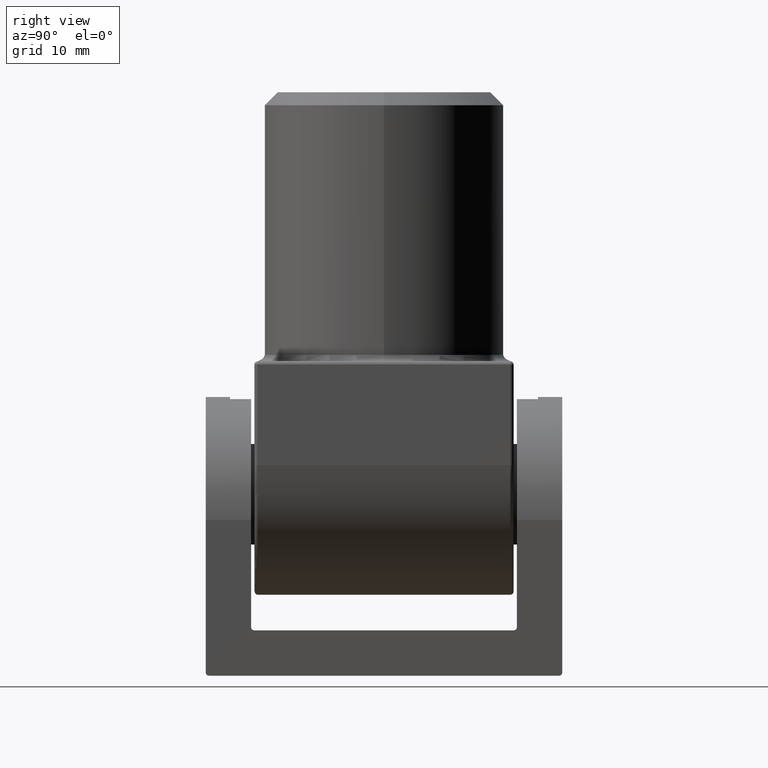
[diagram: clean part render]
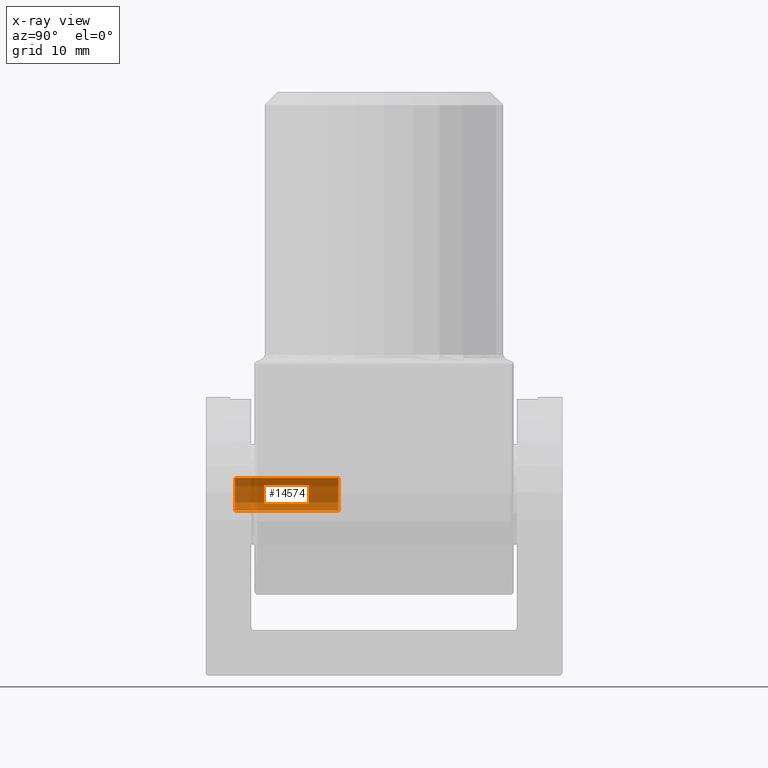
[diagram: x-ray — body ghosted, one internal face saturated and labeled with its STEP entity id]
A machine part, right view, then the same camera in x-ray: the body is ghosted and one INTERNAL B-rep face — a face not visible from any outside direction — is saturated and labeled: STEP entity #14574.
In plain terms, the highlighted cylindrical surface (edge-blend (fillet) strip) has radius 2.5 mm, axis along (-0, -1, -0).
Its self-contained STEP definition (entity closure, byte-faithful):
#38 = CYLINDRICAL_SURFACE ( 'NONE', #6455, 2.499999999999992006 ) ;
#610 = DIRECTION ( 'NONE',  ( -0.000000000000000000, -1.000000000000000000, -0.000000000000000000 ) ) ;
#639 = CARTESIAN_POINT ( 'NONE',  ( 3.061616997868377718E-16, -6.999999999999999112, -18.00000000000001066 ) ) ;
#1037 = ORIENTED_EDGE ( 'NONE', *, *, #18775, .T. ) ;
#1546 = DIRECTION ( 'NONE',  ( 0.000000000000000000, 0.000000000000000000, 1.000000000000000000 ) ) ;
#1718 = EDGE_LOOP ( 'NONE', ( #8089, #10330, #1037, #14145 ) ) ;
#2463 = VERTEX_POINT ( 'NONE', #11421 ) ;
#2840 = AXIS2_PLACEMENT_3D ( 'NONE', #14750, #5999, #1546 ) ;
#4074 = VERTEX_POINT ( 'NONE', #639 ) ;
#4079 = CARTESIAN_POINT ( 'NONE',  ( 0.000000000000000000, -23.00000000000000711, -22.99999999999999645 ) ) ;
#4240 = EDGE_CURVE ( 'NONE', #4074, #2463, #13802, .T. ) ;
#5395 = CARTESIAN_POINT ( 'NONE',  ( 0.000000000000000000, -6.999999999999999112, -20.50000000000000355 ) ) ;
#5999 = DIRECTION ( 'NONE',  ( 0.000000000000000000, -1.000000000000000000, 0.000000000000000000 ) ) ;
#6455 = AXIS2_PLACEMENT_3D ( 'NONE', #10139, #8468, #7191 ) ;
#6978 = LINE ( 'NONE', #8675, #14517 ) ;
#7191 = DIRECTION ( 'NONE',  ( 0.000000000000000000, 0.000000000000000000, -1.000000000000000000 ) ) ;
#7740 = DIRECTION ( 'NONE',  ( 0.000000000000000000, 0.000000000000000000, -1.000000000000000000 ) ) ;
#8089 = ORIENTED_EDGE ( 'NONE', *, *, #4240, .F. ) ;
#8468 = DIRECTION ( 'NONE',  ( -0.000000000000000000, -1.000000000000000000, -0.000000000000000000 ) ) ;
#8675 = CARTESIAN_POINT ( 'NONE',  ( 3.061616997868373773E-16, -23.50000000000000000, -18.00000000000001421 ) ) ;
#9193 = CARTESIAN_POINT ( 'NONE',  ( 3.061616997868375253E-16, -23.00000000000000711, -18.00000000000001421 ) ) ;
#9402 = CARTESIAN_POINT ( 'NONE',  ( 0.000000000000000000, -23.50000000000000000, -22.99999999999999645 ) ) ;
#9415 = LINE ( 'NONE', #9402, #17409 ) ;
#10139 = CARTESIAN_POINT ( 'NONE',  ( 0.000000000000000000, -23.50000000000000000, -20.50000000000000355 ) ) ;
#10280 = VERTEX_POINT ( 'NONE', #4079 ) ;
#10330 = ORIENTED_EDGE ( 'NONE', *, *, #18748, .T. ) ;
#11421 = CARTESIAN_POINT ( 'NONE',  ( 0.000000000000000000, -6.999999999999999112, -23.00000000000000000 ) ) ;
#11570 = AXIS2_PLACEMENT_3D ( 'NONE', #5395, #610, #7740 ) ;
#11894 = FACE_OUTER_BOUND ( 'NONE', #1718, .T. ) ;
#12887 = EDGE_CURVE ( 'NONE', #2463, #10280, #9415, .T. ) ;
#13802 = CIRCLE ( 'NONE', #11570, 2.499999999999995115 ) ;
#14145 = ORIENTED_EDGE ( 'NONE', *, *, #12887, .F. ) ;
#14517 = VECTOR ( 'NONE', #15949, 1000.000000000000000 ) ;
#14574 = ADVANCED_FACE ( 'NONE', ( #11894 ), #38, .F. ) ;
#14750 = CARTESIAN_POINT ( 'NONE',  ( 0.000000000000000000, -23.00000000000000711, -20.50000000000000355 ) ) ;
#15075 = DIRECTION ( 'NONE',  ( -0.000000000000000000, -1.000000000000000000, -0.000000000000000000 ) ) ;
#15949 = DIRECTION ( 'NONE',  ( -0.000000000000000000, -1.000000000000000000, -0.000000000000000000 ) ) ;
#16025 = VERTEX_POINT ( 'NONE', #9193 ) ;
#17409 = VECTOR ( 'NONE', #15075, 1000.000000000000000 ) ;
#18412 = CIRCLE ( 'NONE', #2840, 2.499999999999992006 ) ;
#18748 = EDGE_CURVE ( 'NONE', #4074, #16025, #6978, .T. ) ;
#18775 = EDGE_CURVE ( 'NONE', #16025, #10280, #18412, .T. ) ;